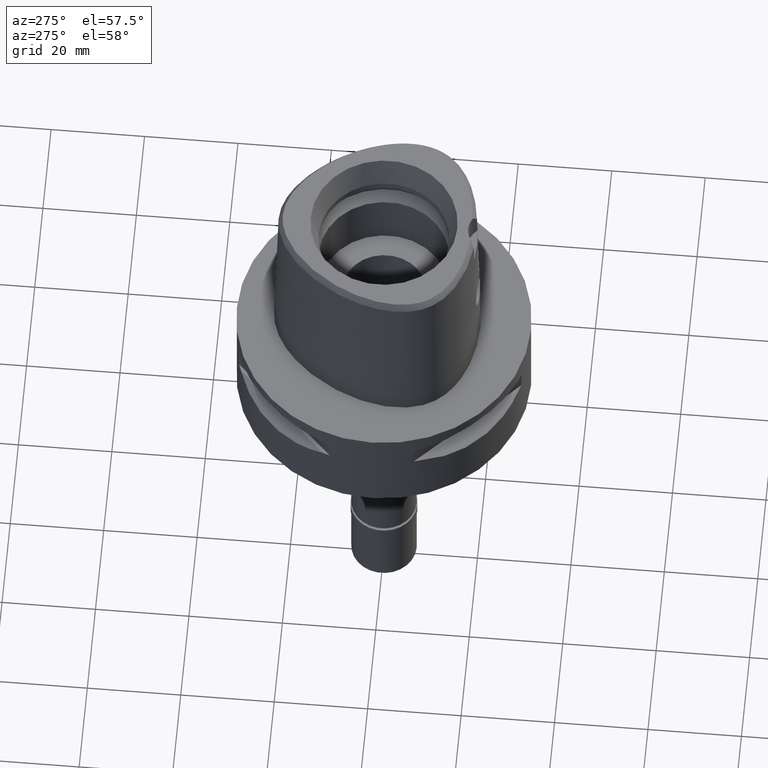
[diagram: clean part render]
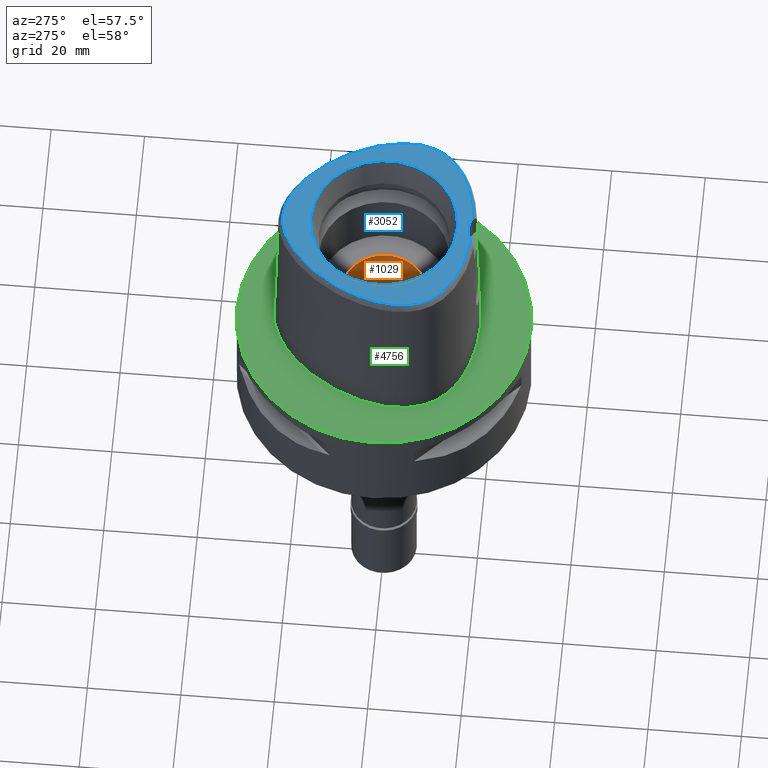
[diagram: same view with three faces highlighted in distinct colors, each labeled with its STEP entity id]
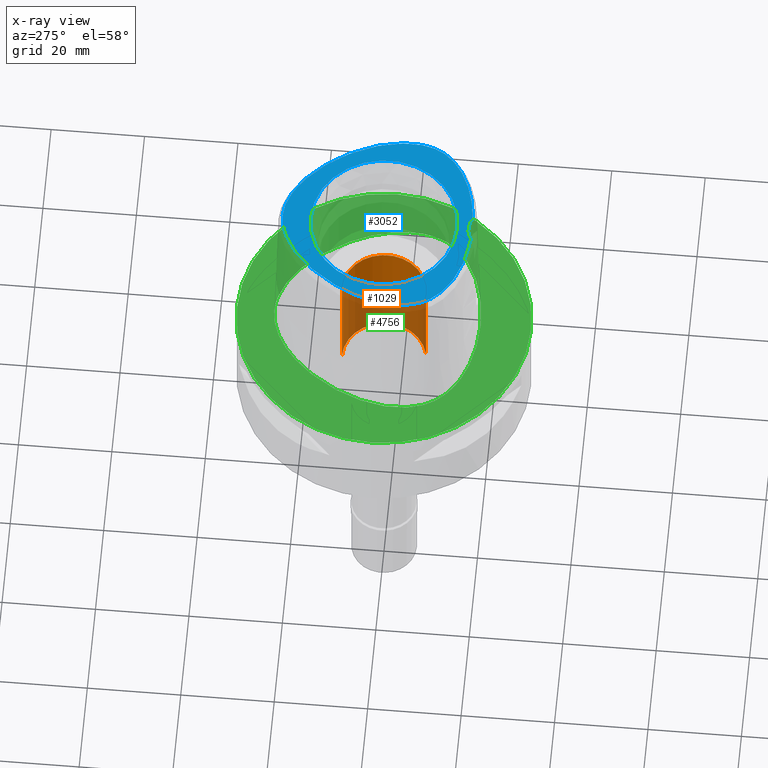
[diagram: x-ray of the same camera — body ghosted, the three highlighted faces saturated]
A machine part, auxiliary view with three faces highlighted in distinct colors.
The next image is the same camera in x-ray (body ghosted, the three faces saturated) — at least one of them is partly hidden behind the body in this view.
Their STEP definitions:

[orange] entity #1029 — the highlighted cylindrical surface (partial cylindrical patch) has radius 9 mm, axis along (0, 0, -1).
#103 = ORIENTED_EDGE ( 'NONE', *, *, #3881, .F. ) ;
#343 = CARTESIAN_POINT ( 'NONE',  ( 0.0000000000000000000, 1.277306611510999858E-14, 4.299999999999999822 ) ) ;
#567 = VERTEX_POINT ( 'NONE', #1850 ) ;
#774 = CYLINDRICAL_SURFACE ( 'NONE', #807, 9.000000000000000000 ) ;
#807 = AXIS2_PLACEMENT_3D ( 'NONE', #343, #4152, #2300 ) ;
#934 = CARTESIAN_POINT ( 'NONE',  ( 0.0000000000000000000, 9.000000000000000000, -16.00000000000000000 ) ) ;
#1002 = DIRECTION ( 'NONE',  ( 0.0000000000000000000, 0.0000000000000000000, -1.000000000000000000 ) ) ;
#1029 = ADVANCED_FACE ( 'NONE', ( #4174 ), #774, .F. ) ;
#1044 = CIRCLE ( 'NONE', #1359, 9.000000000000000000 ) ;
#1184 = ORIENTED_EDGE ( 'NONE', *, *, #1489, .F. ) ;
#1215 = CARTESIAN_POINT ( 'NONE',  ( 0.0000000000000000000, -9.000000000000000000, -16.00000000000000000 ) ) ;
#1245 = LINE ( 'NONE', #1621, #2344 ) ;
#1263 = CARTESIAN_POINT ( 'NONE',  ( 0.0000000000000000000, 1.277306611510999858E-14, 11.00000000000000000 ) ) ;
#1359 = AXIS2_PLACEMENT_3D ( 'NONE', #4614, #3174, #2359 ) ;
#1489 = EDGE_CURVE ( 'NONE', #3597, #2198, #1776, .T. ) ;
#1621 = CARTESIAN_POINT ( 'NONE',  ( 0.0000000000000000000, 9.000000000000000000, -16.00000000000000000 ) ) ;
#1776 = LINE ( 'NONE', #2836, #2768 ) ;
#1850 = CARTESIAN_POINT ( 'NONE',  ( 0.0000000000000000000, 9.000000000000000000, 11.00000000000000000 ) ) ;
#2129 = ORIENTED_EDGE ( 'NONE', *, *, #2266, .T. ) ;
#2198 = VERTEX_POINT ( 'NONE', #1215 ) ;
#2266 = EDGE_CURVE ( 'NONE', #3597, #567, #2849, .T. ) ;
#2292 = VERTEX_POINT ( 'NONE', #934 ) ;
#2300 = DIRECTION ( 'NONE',  ( 0.0000000000000000000, -1.000000000000000000, 0.0000000000000000000 ) ) ;
#2344 = VECTOR ( 'NONE', #3880, 1000.000000000000000 ) ;
#2359 = DIRECTION ( 'NONE',  ( 0.0000000000000000000, 1.000000000000000000, 0.0000000000000000000 ) ) ;
#2684 = ORIENTED_EDGE ( 'NONE', *, *, #3496, .T. ) ;
#2768 = VECTOR ( 'NONE', #1002, 1000.000000000000000 ) ;
#2798 = CARTESIAN_POINT ( 'NONE',  ( 0.0000000000000000000, -9.000000000000000000, 11.00000000000000000 ) ) ;
#2836 = CARTESIAN_POINT ( 'NONE',  ( 0.0000000000000000000, -9.000000000000000000, 11.00000000000000000 ) ) ;
#2849 = CIRCLE ( 'NONE', #3498, 9.000000000000000000 ) ;
#3174 = DIRECTION ( 'NONE',  ( 0.0000000000000000000, 0.0000000000000000000, -1.000000000000000000 ) ) ;
#3496 = EDGE_CURVE ( 'NONE', #2292, #2198, #1044, .T. ) ;
#3498 = AXIS2_PLACEMENT_3D ( 'NONE', #1263, #3552, #3529 ) ;
#3529 = DIRECTION ( 'NONE',  ( 0.0000000000000000000, -1.000000000000000000, 0.0000000000000000000 ) ) ;
#3552 = DIRECTION ( 'NONE',  ( 0.0000000000000000000, 0.0000000000000000000, 1.000000000000000000 ) ) ;
#3597 = VERTEX_POINT ( 'NONE', #2798 ) ;
#3880 = DIRECTION ( 'NONE',  ( 0.0000000000000000000, 0.0000000000000000000, 1.000000000000000000 ) ) ;
#3881 = EDGE_CURVE ( 'NONE', #2292, #567, #1245, .T. ) ;
#4152 = DIRECTION ( 'NONE',  ( 0.0000000000000000000, 0.0000000000000000000, -1.000000000000000000 ) ) ;
#4174 = FACE_OUTER_BOUND ( 'NONE', #4282, .T. ) ;
#4282 = EDGE_LOOP ( 'NONE', ( #2684, #1184, #2129, #103 ) ) ;
#4614 = CARTESIAN_POINT ( 'NONE',  ( 0.0000000000000000000, 1.277306611510999858E-14, -16.00000000000000000 ) ) ;

[blue] entity #3052 — the highlighted planar face has unit normal (0, 0, 1).
#12 = CARTESIAN_POINT ( 'NONE',  ( 7.655962789344027186, 19.09402979099596465, 38.00000000000117240 ) ) ;
#39 = CARTESIAN_POINT ( 'NONE',  ( 19.54993126781858237, -9.226212439885761896, 38.00000000000024869 ) ) ;
#76 = CARTESIAN_POINT ( 'NONE',  ( -19.64434054693644072, 1.520253387636164799, 37.99999999999468514 ) ) ;
#85 = CARTESIAN_POINT ( 'NONE',  ( 0.0000000000000000000, 0.0000000000000000000, 38.00000000000000000 ) ) ;
#100 = CARTESIAN_POINT ( 'NONE',  ( -11.46564124494416603, 15.92741340513468451, 37.99999999999288747 ) ) ;
#125 = CARTESIAN_POINT ( 'NONE',  ( -15.71788912669310534, -14.29843101565933949, 37.99999999999152323 ) ) ;
#133 = DIRECTION ( 'NONE',  ( 0.0000000000000000000, 1.000000000000000000, 0.0000000000000000000 ) ) ;
#148 = CARTESIAN_POINT ( 'NONE',  ( -20.30498420086959754, -2.177378896257928798, 38.00000000000153477 ) ) ;
#175 = CARTESIAN_POINT ( 'NONE',  ( -17.45119705493911155, -12.68365517585899660, 38.00000000000186162 ) ) ;
#265 = EDGE_LOOP ( 'NONE', ( #1453, #4775 ) ) ;
#271 = EDGE_CURVE ( 'NONE', #2469, #2363, #3023, .T. ) ;
#331 = EDGE_CURVE ( 'NONE', #2363, #2469, #961, .T. ) ;
#359 = CARTESIAN_POINT ( 'NONE',  ( 0.0000000000000000000, 0.0000000000000000000, 38.00000000000000000 ) ) ;
#387 = CARTESIAN_POINT ( 'NONE',  ( 20.27923816685945724, -6.179850483268022998, 38.00000000000232347 ) ) ;
#410 = CARTESIAN_POINT ( 'NONE',  ( 19.64387775268202319, 1.522048414458240906, 37.99999999999626965 ) ) ;
#432 = CARTESIAN_POINT ( 'NONE',  ( 11.32341394162961912, -16.80569392800751061, 37.99999999999295142 ) ) ;
#445 = CARTESIAN_POINT ( 'NONE',  ( -14.21001600787643682, -15.34519100086538579, 37.99999999999469935 ) ) ;
#466 = CIRCLE ( 'NONE', #3890, 5.000000000000000888 ) ;
#468 = CARTESIAN_POINT ( 'NONE',  ( -19.26324493739011956, 2.868570891457427496, 38.00000000000031974 ) ) ;
#480 = DIRECTION ( 'NONE',  ( 0.0000000000000000000, -1.000000000000000000, 0.0000000000000000000 ) ) ;
#493 = CARTESIAN_POINT ( 'NONE',  ( -19.78262210840145841, -8.543146992553143804, 37.99999999999985789 ) ) ;
#504 = CARTESIAN_POINT ( 'NONE',  ( 3.529311563348659142, -18.70747079910108468, 37.99999999999658229 ) ) ;
#541 = CARTESIAN_POINT ( 'NONE',  ( -4.254559144978625085, 20.86660163697690962, 37.99999999999225508 ) ) ;
#605 = ORIENTED_EDGE ( 'NONE', *, *, #1615, .F. ) ;
#705 = CARTESIAN_POINT ( 'NONE',  ( 17.91165267838956510, -12.13575389397516702, 37.99999999999877076 ) ) ;
#723 = CARTESIAN_POINT ( 'NONE',  ( 0.0000000000000000000, -23.00000000000000000, 38.00000000000000000 ) ) ;
#724 = PLANE ( 'NONE',  #1440 ) ;
#730 = CARTESIAN_POINT ( 'NONE',  ( 19.26272899268477801, 2.870227893749763393, 37.99999999999918998 ) ) ;
#738 = CARTESIAN_POINT ( 'NONE',  ( -3.470663397174999625E-11, 21.68728795390000030, 38.00000000000000000 ) ) ;
#753 = CARTESIAN_POINT ( 'NONE',  ( 20.40062138794953839, -4.309334958867803600, 37.99999999999641886 ) ) ;
#776 = CARTESIAN_POINT ( 'NONE',  ( 5.059249257021085633, 20.53399274679191322, 37.99999999999050004 ) ) ;
#805 = CARTESIAN_POINT ( 'NONE',  ( 18.79595068776295719, 4.257753965102448745, 37.99999999999909051 ) ) ;
#817 = CARTESIAN_POINT ( 'NONE',  ( -18.24302769442583028, 5.671232572958936125, 37.99999999999315747 ) ) ;
#832 = CARTESIAN_POINT ( 'NONE',  ( 16.93855157778166998, -13.22377441789625330, 37.99999999999274536 ) ) ;
#854 = CARTESIAN_POINT ( 'NONE',  ( 13.33890749495912509, -15.84912955619883768, 37.99999999999346301 ) ) ;
#867 = CARTESIAN_POINT ( 'NONE',  ( -19.98419490692007372, -7.809898894996430307, 37.99999999999962341 ) ) ;
#894 = CARTESIAN_POINT ( 'NONE',  ( -18.99520880204681816, -10.46968343926616996, 37.99999999999982236 ) ) ;
#917 = CARTESIAN_POINT ( 'NONE',  ( -17.91005512243599185, -12.13778127739821322, 37.99999999999904077 ) ) ;
#947 = DIRECTION ( 'NONE',  ( 0.0000000000000000000, 0.0000000000000000000, 1.000000000000000000 ) ) ;
#961 = CIRCLE ( 'NONE', #2560, 15.71487483155999776 ) ;
#1087 = CARTESIAN_POINT ( 'NONE',  ( 19.28677546797037579, -9.867757137506345089, 37.99999999999813838 ) ) ;
#1133 = CARTESIAN_POINT ( 'NONE',  ( 16.88599964843080414, 8.518708218770077778, 37.99999999999590727 ) ) ;
#1156 = CARTESIAN_POINT ( 'NONE',  ( 19.98468477322826686, -7.807876343103914429, 37.99999999999636913 ) ) ;
#1177 = CARTESIAN_POINT ( 'NONE',  ( 19.78323211893306066, -8.541156231035683888, 37.99999999999135980 ) ) ;
#1232 = CARTESIAN_POINT ( 'NONE',  ( 6.196495988003482225, -18.31673538865334194, 37.99999999999906919 ) ) ;
#1239 = CARTESIAN_POINT ( 'NONE',  ( 0.0000000000000000000, 15.71487483155999776, 38.00000000000000000 ) ) ;
#1268 = CARTESIAN_POINT ( 'NONE',  ( -12.37132652997974525, -16.34104299088316381, 37.99999999999624123 ) ) ;
#1292 = CARTESIAN_POINT ( 'NONE',  ( -18.67608643722019934, -11.03561202290957510, 37.99999999999504752 ) ) ;
#1302 = CARTESIAN_POINT ( 'NONE',  ( 14.21382211799543249, -15.34284287400556579, 37.99999999999774047 ) ) ;
#1315 = CARTESIAN_POINT ( 'NONE',  ( -2.682279906006999948, -18.78035848609999903, 38.00000000000000000 ) ) ;
#1379 = VERTEX_POINT ( 'NONE', #1725 ) ;
#1418 = CARTESIAN_POINT ( 'NONE',  ( -1.323674540694302015, 21.61098849315643022, 37.99999999999819522 ) ) ;
#1440 = AXIS2_PLACEMENT_3D ( 'NONE', #359, #4169, #3437 ) ;
#1453 = ORIENTED_EDGE ( 'NONE', *, *, #331, .F. ) ;
#1462 = CARTESIAN_POINT ( 'NONE',  ( 5.894487344450181077, 20.13186406532426531, 37.99999999999511147 ) ) ;
#1480 = FACE_OUTER_BOUND ( 'NONE', #3783, .T. ) ;
#1486 = CARTESIAN_POINT ( 'NONE',  ( 6.760281394351210338, 19.65404668909837227, 37.99999999999469225 ) ) ;
#1509 = CARTESIAN_POINT ( 'NONE',  ( 4.255661039972727266, 20.86618068829700690, 37.99999999999252509 ) ) ;
#1510 = B_SPLINE_CURVE_WITH_KNOTS ( 'NONE', 3,
 ( #1315, #3150, #1596, #2067, #2410, #3858, #4216, #2035, #2755, #1268, #1966, #445, #2733, #125, #3510, #1990, #175, #917, #3123, #1292, #894, #3927, #2361, #493, #867, #3559, #4711, #3204, #4265, #2386, #148, #2777, #4289, #76, #468, #2013, #817, #3904, #1643, #3581, #2800, #1667, #3534, #4664, #100, #3099, #4617, #4685, #4310, #2336, #2435, #3950, #541, #1691, #3483, #4242, #1418, #1739, #2139, #4738 ),
 .UNSPECIFIED., .F., .F.,
 ( 4, 1, 1, 1, 1, 1, 1, 1, 1, 1, 1, 1, 1, 1, 1, 1, 1, 1, 1, 1, 1, 1, 1, 1, 1, 1, 1, 1, 1, 1, 1, 1, 1, 1, 1, 1, 1, 1, 1, 1, 1, 1, 1, 1, 1, 1, 1, 1, 1, 1, 1, 1, 1, 1, 1, 1, 1, 4 ),
 ( 0.0000000000000000000, 0.005420919554200098744, 0.02318126027639999531, 0.04094160099879995407, 0.05870194172099996166, 0.07646228244330000035, 0.09422262316550000794, 0.1119829638877999356, 0.1297433046099999432, 0.1475036453321999508, 0.1652639860544999895, 0.1830243267768000281, 0.2007846674991000668, 0.2185450082212999634, 0.2363053489436000021, 0.2540656896658000097, 0.2718260303881000484, 0.2895863711103000560, 0.3073467118325999836, 0.3251070525547999912, 0.3428673932771000299, 0.3606277339994000686, 0.3783880747216000762, 0.3961484154438998928, 0.4139087561661000114, 0.4316690968884000501, 0.4494294376106000577, 0.4671897783328999854, 0.4849501190552000240, 0.5027104597774000316, 0.5204708004996999593, 0.5382311412219000779, 0.5559914819442000056, 0.5737518226664000132, 0.5915121633886999408, 0.6092725041108999484, 0.6270328448331999871, 0.6447931855555000258, 0.6625535262777000334, 0.6803138669999999610, 0.6980742077221999686, 0.7158345484445000073, 0.7335948891667000149, 0.7513552298890000536, 0.7691155706112000612, 0.7868759113336000199, 0.8046362520558000275, 0.8223965927780999552, 0.8401569335002999628, 0.8579172742224999704, 0.8756776149448000091, 0.8934379556670000166, 0.9111982963893099363, 0.9289586371115700070, 0.9467189778338299666, 0.9644793185560800453, 0.9822396592783400049, 1.000000000000000000 ),
 .UNSPECIFIED. ) ;
#1535 = CARTESIAN_POINT ( 'NONE',  ( 17.60373714028570191, 7.099883643192829830, 37.99999999999627676 ) ) ;
#1560 = CARTESIAN_POINT ( 'NONE',  ( 18.67722910598558528, -11.03372143227992908, 37.99999999999570832 ) ) ;
#1596 = CARTESIAN_POINT ( 'NONE',  ( -3.522896839654386714, -18.70811514173783507, 37.99999999999571543 ) ) ;
#1615 = EDGE_CURVE ( 'NONE', #1917, #1379, #466, .T. ) ;
#1618 = B_SPLINE_CURVE_WITH_KNOTS ( 'NONE', 3,
 ( #4550, #3792, #1902, #2602, #2992, #4526, #2325, #1509, #776, #1462, #1486, #12, #4900, #4500, #2302, #2670, #2696, #3015, #4478, #4133, #3420, #1133, #1535, #3816, #805, #730, #410, #2254, #4153, #3745, #3768, #753, #2277, #387, #3037, #1156, #1177, #39, #1087, #1837, #1560, #4110, #705, #2231, #832, #3915, #2446, #4698, #1302, #854, #1632, #432, #2003, #4300, #2024, #1232, #2399, #504, #3547, #2811 ),
 .UNSPECIFIED., .F., .F.,
 ( 4, 1, 1, 1, 1, 1, 1, 1, 1, 1, 1, 1, 1, 1, 1, 1, 1, 1, 1, 1, 1, 1, 1, 1, 1, 1, 1, 1, 1, 1, 1, 1, 1, 1, 1, 1, 1, 1, 1, 1, 1, 1, 1, 1, 1, 1, 1, 1, 1, 1, 1, 1, 1, 1, 1, 1, 1, 4 ),
 ( 0.0000000000000000000, 0.01775854187129999318, 0.03551708374169992855, 0.05327562561200005486, 0.07103416748239999023, 0.08879270935270000553, 0.1065512512231000519, 0.1243097930933999562, 0.1420683349638000026, 0.1598268768341000179, 0.1775854187044000332, 0.1953439605747999686, 0.2131025024450999839, 0.2308610443155000302, 0.2486195861857999345, 0.2663781280563000120, 0.2841366699266000273, 0.3018952117970000737, 0.3196537536672999780, 0.3374122955377000244, 0.3551708374080000397, 0.3729293792782999439, 0.3906879211486999903, 0.4084464630190000056, 0.4262050048894000520, 0.4439635467596999563, 0.4617220886301000027, 0.4794806305004000180, 0.4972391723707999533, 0.5149977142410999686, 0.5327562561113999839, 0.5505147979818000303, 0.5682733398521000456, 0.5860318817224999810, 0.6037904235927999963, 0.6215489654632000427, 0.6393075073334999470, 0.6570660492038999934, 0.6748245910742000087, 0.6925831329445000240, 0.7103416748149000703, 0.7281002166851999746, 0.7458587585556000210, 0.7636173004259000363, 0.7813758422962999717, 0.7991343841665999870, 0.8168929260370000334, 0.8346514679073000487, 0.8524100097776999840, 0.8701685516479999993, 0.8879270935183000146, 0.9056856353886799660, 0.9234441772589799813, 0.9412027191293600437, 0.9589612609997000270, 0.9767198028700500023, 0.9944783447403919840, 1.000000000000000000 ),
 .UNSPECIFIED. ) ;
#1632 = CARTESIAN_POINT ( 'NONE',  ( 12.37622418509702626, -16.33871033285740992, 37.99999999999209876 ) ) ;
#1643 = CARTESIAN_POINT ( 'NONE',  ( -16.88647904405539890, 8.517821442303842971, 37.99999999999828759 ) ) ;
#1667 = CARTESIAN_POINT ( 'NONE',  ( -14.34402387965722347, 12.54761970513117220, 37.99999999999926814 ) ) ;
#1691 = CARTESIAN_POINT ( 'NONE',  ( -3.481017203589414244, 21.13509756881976642, 37.99999999998989608 ) ) ;
#1725 = CARTESIAN_POINT ( 'NONE',  ( -2.682279906006999948, -18.78035848609999903, 38.00000000000000000 ) ) ;
#1739 = CARTESIAN_POINT ( 'NONE',  ( -0.6498990081536148988, 21.67378274708397967, 37.99999999999037215 ) ) ;
#1837 = CARTESIAN_POINT ( 'NONE',  ( 18.99619228226276846, -10.46780014453555019, 37.99999999999299405 ) ) ;
#1902 = CARTESIAN_POINT ( 'NONE',  ( 0.6513209347955553064, 21.67370899611235657, 37.99999999999604228 ) ) ;
#1917 = VERTEX_POINT ( 'NONE', #3907 ) ;
#1966 = CARTESIAN_POINT ( 'NONE',  ( -13.33457781970217582, -15.85148397417890642, 37.99999999999765521 ) ) ;
#1990 = CARTESIAN_POINT ( 'NONE',  ( -16.93638123745682478, -13.22593246128733568, 37.99999999999467803 ) ) ;
#2003 = CARTESIAN_POINT ( 'NONE',  ( 10.17751632998041345, -17.24426134458967752, 37.99999999999835154 ) ) ;
#2013 = CARTESIAN_POINT ( 'NONE',  ( -18.79649882725113486, 4.256255933891768706, 37.99999999999492672 ) ) ;
#2024 = CARTESIAN_POINT ( 'NONE',  ( 7.606839420237791138, -18.00827588386101041, 37.99999999999970157 ) ) ;
#2035 = CARTESIAN_POINT ( 'NONE',  ( -10.17136073855287393, -17.24644253470300370, 37.99999999999700151 ) ) ;
#2067 = CARTESIAN_POINT ( 'NONE',  ( -4.706994425064666032, -18.56721852573081222, 38.00000000000186162 ) ) ;
#2123 = CARTESIAN_POINT ( 'NONE',  ( 0.0000000000000000000, 0.0000000000000000000, 38.00000000000000000 ) ) ;
#2139 = CARTESIAN_POINT ( 'NONE',  ( -0.2181979014508845793, 21.68728795389269592, 37.99999999999072742 ) ) ;
#2231 = CARTESIAN_POINT ( 'NONE',  ( 17.45306278053165272, -12.68156296993408461, 38.00000000000130740 ) ) ;
#2254 = CARTESIAN_POINT ( 'NONE',  ( 19.94150023627906165, 0.2261566111946391178, 37.99999999999943157 ) ) ;
#2277 = CARTESIAN_POINT ( 'NONE',  ( 20.36412151360978484, -5.276385427453837096, 38.00000000000012790 ) ) ;
#2302 = CARTESIAN_POINT ( 'NONE',  ( 10.48999540691425914, 16.86597469870252297, 37.99999999999648281 ) ) ;
#2325 = CARTESIAN_POINT ( 'NONE',  ( 3.482188079159944660, 21.13472718027583142, 37.99999999999262457 ) ) ;
#2336 = CARTESIAN_POINT ( 'NONE',  ( -6.759433772717978961, 19.65454812513169713, 37.99999999998910027 ) ) ;
#2361 = CARTESIAN_POINT ( 'NONE',  ( -19.54919922642120156, -9.228169790569110020, 38.00000000000201794 ) ) ;
#2363 = VERTEX_POINT ( 'NONE', #1239 ) ;
#2386 = CARTESIAN_POINT ( 'NONE',  ( -20.38301517462857859, -3.278344853327475938, 37.99999999999635492 ) ) ;
#2399 = CARTESIAN_POINT ( 'NONE',  ( 4.715576077241800057, -18.56597918135391012, 37.99999999998885869 ) ) ;
#2410 = CARTESIAN_POINT ( 'NONE',  ( -6.188376196367142867, -18.31830638231387454, 37.99999999999331379 ) ) ;
#2435 = CARTESIAN_POINT ( 'NONE',  ( -5.893543501601998358, 20.13235399352335264, 37.99999999999989342 ) ) ;
#2446 = CARTESIAN_POINT ( 'NONE',  ( 15.72078707640507389, -14.29615620309170332, 37.99999999999743494 ) ) ;
#2469 = VERTEX_POINT ( 'NONE', #4175 ) ;
#2560 = AXIS2_PLACEMENT_3D ( 'NONE', #2123, #947, #133 ) ;
#2570 = DIRECTION ( 'NONE',  ( 0.0000000000000000000, 0.0000000000000000000, 1.000000000000000000 ) ) ;
#2582 = EDGE_CURVE ( 'NONE', #3340, #1917, #1618, .T. ) ;
#2602 = CARTESIAN_POINT ( 'NONE',  ( 1.325020189552978067, 21.61081414408828749, 38.00000000000042633 ) ) ;
#2670 = CARTESIAN_POINT ( 'NONE',  ( 11.46587147800286210, 15.92717600803003286, 37.99999999999710809 ) ) ;
#2696 = CARTESIAN_POINT ( 'NONE',  ( 12.44125753246503940, 14.89118158853944429, 37.99999999999700151 ) ) ;
#2733 = CARTESIAN_POINT ( 'NONE',  ( -15.00295592773658626, -14.82617991125779611, 37.99999999999606359 ) ) ;
#2755 = CARTESIAN_POINT ( 'NONE',  ( -11.31790883121226798, -16.80796958614038772, 37.99999999999536726 ) ) ;
#2777 = CARTESIAN_POINT ( 'NONE',  ( -20.16012968311570219, -1.009698174524126912, 37.99999999999856470 ) ) ;
#2800 = CARTESIAN_POINT ( 'NONE',  ( -15.24692477332810547, 11.25717358966726422, 37.99999999999951683 ) ) ;
#2811 = CARTESIAN_POINT ( 'NONE',  ( 2.682287482605000051, -18.78036330228999873, 38.00000000000000000 ) ) ;
#2992 = CARTESIAN_POINT ( 'NONE',  ( 2.018320379028669009, 21.50256508436079628, 38.00000000000088107 ) ) ;
#3015 = CARTESIAN_POINT ( 'NONE',  ( 13.40430406168949418, 13.76274261012867406, 38.00000000000237321 ) ) ;
#3023 = CIRCLE ( 'NONE', #3270, 15.71487483155999776 ) ;
#3037 = CARTESIAN_POINT ( 'NONE',  ( 20.15127154947789734, -7.022178451341446248, 38.00000000000135003 ) ) ;
#3052 = ADVANCED_FACE ( 'NONE', ( #1480, #4126 ), #724, .T. ) ;
#3099 = CARTESIAN_POINT ( 'NONE',  ( -10.48962422760007485, 16.86631853279082449, 37.99999999999962341 ) ) ;
#3123 = CARTESIAN_POINT ( 'NONE',  ( -18.31748213707672690, -11.58791794387622076, 37.99999999999644018 ) ) ;
#3150 = CARTESIAN_POINT ( 'NONE',  ( -2.841965291530648585, -18.76757795571776555, 37.99999999999938893 ) ) ;
#3204 = CARTESIAN_POINT ( 'NONE',  ( -20.36398648679537615, -5.278470727085804448, 37.99999999999683808 ) ) ;
#3270 = AXIS2_PLACEMENT_3D ( 'NONE', #85, #3520, #480 ) ;
#3340 = VERTEX_POINT ( 'NONE', #738 ) ;
#3420 = CARTESIAN_POINT ( 'NONE',  ( 16.09765529146447349, 9.909410920132922129, 37.99999999998851763 ) ) ;
#3437 = DIRECTION ( 'NONE',  ( 1.000000000000000000, 0.0000000000000000000, 0.0000000000000000000 ) ) ;
#3483 = CARTESIAN_POINT ( 'NONE',  ( -2.735698246183325910, 21.34559102902507632, 38.00000000000076028 ) ) ;
#3510 = CARTESIAN_POINT ( 'NONE',  ( -16.36032397154023954, -13.76458520345547143, 37.99999999999751310 ) ) ;
#3520 = DIRECTION ( 'NONE',  ( 0.0000000000000000000, 0.0000000000000000000, 1.000000000000000000 ) ) ;
#3534 = CARTESIAN_POINT ( 'NONE',  ( -13.40435640711941367, 13.76268382997163897, 37.99999999999577227 ) ) ;
#3547 = CARTESIAN_POINT ( 'NONE',  ( 2.845098933833399180, -18.76733062685926612, 37.99999999999623412 ) ) ;
#3559 = CARTESIAN_POINT ( 'NONE',  ( -20.15090095364768885, -7.024227649787801120, 37.99999999999792522 ) ) ;
#3581 = CARTESIAN_POINT ( 'NONE',  ( -16.09805956313970654, 9.908742513518054906, 37.99999999999937472 ) ) ;
#3745 = CARTESIAN_POINT ( 'NONE',  ( 20.30478359881580275, -2.175347700950678309, 37.99999999999710809 ) ) ;
#3768 = CARTESIAN_POINT ( 'NONE',  ( 20.38292172607449615, -3.276278498261294470, 37.99999999999621281 ) ) ;
#3783 = EDGE_LOOP ( 'NONE', ( #4702, #4024, #605 ) ) ;
#3792 = CARTESIAN_POINT ( 'NONE',  ( 0.2185816947241123465, 21.68728795389402819, 37.99999999999718625 ) ) ;
#3816 = CARTESIAN_POINT ( 'NONE',  ( 18.24247239569602286, 5.672548708072492119, 37.99999999999553779 ) ) ;
#3858 = CARTESIAN_POINT ( 'NONE',  ( -7.599370508971153626, -18.01010694911619225, 37.99999999999602807 ) ) ;
#3890 = AXIS2_PLACEMENT_3D ( 'NONE', #723, #2570, #4493 ) ;
#3904 = CARTESIAN_POINT ( 'NONE',  ( -17.60426951086894931, 7.098774535282587728, 37.99999999999219824 ) ) ;
#3907 = CARTESIAN_POINT ( 'NONE',  ( 2.682287482605000051, -18.78036330228999873, 38.00000000000000000 ) ) ;
#3915 = CARTESIAN_POINT ( 'NONE',  ( 16.36283630828387103, -13.76236604534778429, 37.99999999999745626 ) ) ;
#3916 = EDGE_CURVE ( 'NONE', #1379, #3340, #1510, .T. ) ;
#3927 = CARTESIAN_POINT ( 'NONE',  ( -19.28591707037117686, -9.869682450887594882, 37.99999999999295852 ) ) ;
#3950 = CARTESIAN_POINT ( 'NONE',  ( -5.058220461390257938, 20.53445508814304077, 37.99999999999409539 ) ) ;
#4024 = ORIENTED_EDGE ( 'NONE', *, *, #3916, .F. ) ;
#4110 = CARTESIAN_POINT ( 'NONE',  ( 18.31883910943629346, -11.58595831187969694, 37.99999999999354827 ) ) ;
#4126 = FACE_BOUND ( 'NONE', #265, .T. ) ;
#4133 = CARTESIAN_POINT ( 'NONE',  ( 15.24661770199511146, 11.25762885478003028, 37.99999999999418776 ) ) ;
#4153 = CARTESIAN_POINT ( 'NONE',  ( 20.15982952131994921, -1.007721426051601421, 38.00000000000198952 ) ) ;
#4169 = DIRECTION ( 'NONE',  ( 0.0000000000000000000, 0.0000000000000000000, 1.000000000000000000 ) ) ;
#4175 = CARTESIAN_POINT ( 'NONE',  ( 0.0000000000000000000, -15.71487483155999776, 38.00000000000000000 ) ) ;
#4216 = CARTESIAN_POINT ( 'NONE',  ( -8.930096025510739111, -17.65000298921757960, 38.00000000000150635 ) ) ;
#4242 = CARTESIAN_POINT ( 'NONE',  ( -2.017025177697091998, 21.50280829367959967, 37.99999999999576517 ) ) ;
#4265 = CARTESIAN_POINT ( 'NONE',  ( -20.40060226222999518, -4.311417605381541840, 38.00000000000011369 ) ) ;
#4289 = CARTESIAN_POINT ( 'NONE',  ( -19.94188961899451940, 0.2242544969880314876, 37.99999999999766942 ) ) ;
#4300 = CARTESIAN_POINT ( 'NONE',  ( 8.936919536467451408, -17.64796721715415728, 37.99999999999392486 ) ) ;
#4310 = CARTESIAN_POINT ( 'NONE',  ( -7.655222869373096373, 19.09452359226218121, 37.99999999999149480 ) ) ;
#4478 = CARTESIAN_POINT ( 'NONE',  ( 14.34383722811658224, 12.54786717290767584, 37.99999999999447198 ) ) ;
#4493 = DIRECTION ( 'NONE',  ( 0.0000000000000000000, 1.000000000000000000, 0.0000000000000000000 ) ) ;
#4500 = CARTESIAN_POINT ( 'NONE',  ( 9.524842839488474766, 17.70516372194451193, 38.00000000000187583 ) ) ;
#4526 = CARTESIAN_POINT ( 'NONE',  ( 2.736932690726577633, 21.34527940056999284, 37.99999999999847944 ) ) ;
#4550 = CARTESIAN_POINT ( 'NONE',  ( -3.470663397174999625E-11, 21.68728795390000030, 38.00000000000000000 ) ) ;
#4617 = CARTESIAN_POINT ( 'NONE',  ( -9.524337278002736440, 17.70558492632073211, 37.99999999999255351 ) ) ;
#4664 = CARTESIAN_POINT ( 'NONE',  ( -12.44116897271325151, 14.89128547409854164, 37.99999999999415934 ) ) ;
#4685 = CARTESIAN_POINT ( 'NONE',  ( -8.578220530114510467, 18.44656747109464234, 37.99999999999693756 ) ) ;
#4698 = CARTESIAN_POINT ( 'NONE',  ( 15.00628712263086406, -14.82385870795017624, 37.99999999999131717 ) ) ;
#4702 = ORIENTED_EDGE ( 'NONE', *, *, #2582, .F. ) ;
#4711 = CARTESIAN_POINT ( 'NONE',  ( -20.27898581532684119, -6.181921586190123996, 37.99999999999310774 ) ) ;
#4738 = CARTESIAN_POINT ( 'NONE',  ( -3.470663397174999625E-11, 21.68728795390000030, 38.00000000000000000 ) ) ;
#4775 = ORIENTED_EDGE ( 'NONE', *, *, #271, .F. ) ;
#4900 = CARTESIAN_POINT ( 'NONE',  ( 8.578848111817190869, 18.44609846599220759, 37.99999999999640465 ) ) ;

[green] entity #4756 — the highlighted planar face has unit normal (0, 0, -1).
#88 = VERTEX_POINT ( 'NONE', #1206 ) ;
#183 = DIRECTION ( 'NONE',  ( 0.0000000000000000000, -1.000000000000000000, 0.0000000000000000000 ) ) ;
#198 = AXIS2_PLACEMENT_3D ( 'NONE', #2087, #2898, #1687 ) ;
#358 = CARTESIAN_POINT ( 'NONE',  ( 18.56841065823849846, -14.16937988926337866, -3.744498006477171848E-07 ) ) ;
#376 = CARTESIAN_POINT ( 'NONE',  ( -0.8548392416278450812, 23.47499999052037012, 3.792416903788692504E-07 ) ) ;
#398 = CARTESIAN_POINT ( 'NONE',  ( 5.792621527824999993E-11, 23.47499999999000053, 1.460313351723999876E-13 ) ) ;
#421 = CARTESIAN_POINT ( 'NONE',  ( -22.05732873379196946, -6.847636717395182870, 3.792416903788693033E-07 ) ) ;
#517 = CARTESIAN_POINT ( 'NONE',  ( -2.113823672501519368, -20.67499999052410686, 3.792416903788693033E-07 ) ) ;
#521 = EDGE_CURVE ( 'NONE', #4712, #88, #1049, .T. ) ;
#551 = CARTESIAN_POINT ( 'NONE',  ( -1.135067388878000057E-11, -20.67499999999999716, 1.488439001680999778E-13 ) ) ;
#599 = EDGE_LOOP ( 'NONE', ( #4392, #4688 ) ) ;
#609 = B_SPLINE_CURVE_WITH_KNOTS ( 'NONE', 3,
 ( #398, #376, #3407, #1496, #3758, #2983, #3050, #3027, #2218, #4537, #1143, #421, #1941, #3732, #1870, #1849, #3386, #3002, #1220, #4639, #844, #517, #3176 ),
 .UNSPECIFIED., .F., .F.,
 ( 4, 1, 1, 1, 1, 1, 1, 1, 1, 1, 1, 1, 1, 1, 1, 1, 1, 1, 1, 1, 4 ),
 ( 0.0000000000000000000, 0.04166666666755999837, 0.08333333333417000666, 0.1250000000007999990, 0.1666666666674000152, 0.2500000000006000200, 0.3333333333337999971, 0.4166666666671000052, 0.5000000000004000134, 0.5416666666670000296, 0.5833333333336000459, 0.6250000000001999512, 0.6458333333335000148, 0.6666666666668999985, 0.6875000000001000311, 0.7083333333333999837, 0.7500000000001000311, 0.7916666666667000474, 0.8333333333333000637, 0.9166666666666000163, 1.000000000000000000 ),
 .UNSPECIFIED. ) ;
#744 = CARTESIAN_POINT ( 'NONE',  ( 7.571159439093291255, 21.31457032060213308, -3.744498006477171848E-07 ) ) ;
#766 = CARTESIAN_POINT ( 'NONE',  ( 21.55524826910500735, -8.996025393301707140, -3.744498006477171848E-07 ) ) ;
#830 = DIRECTION ( 'NONE',  ( 0.0000000000000000000, 1.000000000000000000, 0.0000000000000000000 ) ) ;
#844 = CARTESIAN_POINT ( 'NONE',  ( -6.341471017527432252, -20.29812499061782560, 3.792416903788693033E-07 ) ) ;
#853 = DIRECTION ( 'NONE',  ( 0.0000000000000000000, 0.0000000000000000000, -1.000000000000000000 ) ) ;
#908 = ORIENTED_EDGE ( 'NONE', *, *, #521, .F. ) ;
#913 = PLANE ( 'NONE',  #198 ) ;
#1049 = CIRCLE ( 'NONE', #4528, 31.50000000000000000 ) ;
#1057 = CARTESIAN_POINT ( 'NONE',  ( 19.64947366622138958, -12.82525391176496399, -3.744498006477171848E-07 ) ) ;
#1123 = VERTEX_POINT ( 'NONE', #2324 ) ;
#1124 = CARTESIAN_POINT ( 'NONE',  ( 5.098437020777644157, 22.52602539935085346, -3.744498006477171848E-07 ) ) ;
#1143 = CARTESIAN_POINT ( 'NONE',  ( -22.24453906904204814, -4.100468750055721756, 3.792416903788693033E-07 ) ) ;
#1147 = CARTESIAN_POINT ( 'NONE',  ( 2.564517728880365333, 23.29328125921377790, -3.744498006477171848E-07 ) ) ;
#1206 = CARTESIAN_POINT ( 'NONE',  ( 0.0000000000000000000, 31.50000000000000000, 0.0000000000000000000 ) ) ;
#1220 = CARTESIAN_POINT ( 'NONE',  ( -14.67337963949274027, -17.21410155423270183, 3.792416903788693033E-07 ) ) ;
#1289 = FACE_BOUND ( 'NONE', #599, .T. ) ;
#1305 = EDGE_CURVE ( 'NONE', #88, #4712, #2928, .T. ) ;
#1333 = CARTESIAN_POINT ( 'NONE',  ( 0.0000000000000000000, -31.50000000000000000, 0.0000000000000000000 ) ) ;
#1427 = CARTESIAN_POINT ( 'NONE',  ( 2.113823673622854837, -20.67500000935358528, -3.744498006477171848E-07 ) ) ;
#1454 = CARTESIAN_POINT ( 'NONE',  ( 20.34961799369339275, -11.74885742656088361, -3.744498006477171848E-07 ) ) ;
#1479 = CARTESIAN_POINT ( 'NONE',  ( 5.792621527824999993E-11, 23.47499999999000053, 1.460313351723999876E-13 ) ) ;
#1496 = CARTESIAN_POINT ( 'NONE',  ( -5.098437013744451463, 22.52602538178630809, 3.792416903788693033E-07 ) ) ;
#1582 = EDGE_CURVE ( 'NONE', #1809, #1123, #3859, .T. ) ;
#1687 = DIRECTION ( 'NONE',  ( 0.0000000000000000000, -1.000000000000000000, 0.0000000000000000000 ) ) ;
#1809 = VERTEX_POINT ( 'NONE', #4269 ) ;
#1849 = CARTESIAN_POINT ( 'NONE',  ( -19.64947365095674670, -12.82525390065949367, 3.792416903788693033E-07 ) ) ;
#1870 = CARTESIAN_POINT ( 'NONE',  ( -20.34961797734478139, -11.74885741712449772, 3.792416903788693033E-07 ) ) ;
#1873 = CARTESIAN_POINT ( 'NONE',  ( 6.341471020874680953, -20.29812500927057783, -3.744498006477171848E-07 ) ) ;
#1941 = CARTESIAN_POINT ( 'NONE',  ( -21.55524825097652553, -8.996025387914773574, 3.792416903788693033E-07 ) ) ;
#2087 = CARTESIAN_POINT ( 'NONE',  ( 0.0000000000000000000, 1.224646799146999965E-14, 0.0000000000000000000 ) ) ;
#2218 = CARTESIAN_POINT ( 'NONE',  ( -20.74942739982489570, 4.657187496767781099, 3.792416903788693033E-07 ) ) ;
#2247 = CARTESIAN_POINT ( 'NONE',  ( 16.95889173175048370, -15.67838867926641910, -3.744498006477171848E-07 ) ) ;
#2324 = CARTESIAN_POINT ( 'NONE',  ( 5.792621527824999993E-11, 23.47499999999000053, 1.460313351723999876E-13 ) ) ;
#2380 = AXIS2_PLACEMENT_3D ( 'NONE', #2743, #853, #830 ) ;
#2403 = ORIENTED_EDGE ( 'NONE', *, *, #1305, .F. ) ;
#2487 = EDGE_LOOP ( 'NONE', ( #2403, #908 ) ) ;
#2493 = CARTESIAN_POINT ( 'NONE',  ( 0.0000000000000000000, 1.277306611510999858E-14, 0.0000000000000000000 ) ) ;
#2640 = CARTESIAN_POINT ( 'NONE',  ( 0.8548392429718546515, 23.47500000936781461, -3.744498006477171848E-07 ) ) ;
#2743 = CARTESIAN_POINT ( 'NONE',  ( 0.0000000000000000000, 1.277306611510999858E-14, 0.0000000000000000000 ) ) ;
#2898 = DIRECTION ( 'NONE',  ( 0.0000000000000000000, 0.0000000000000000000, -1.000000000000000000 ) ) ;
#2928 = CIRCLE ( 'NONE', #2380, 31.50000000000000000 ) ;
#2983 = CARTESIAN_POINT ( 'NONE',  ( -10.74572890445916507, 19.17433593020312088, 3.792416903788693033E-07 ) ) ;
#2986 = CARTESIAN_POINT ( 'NONE',  ( 20.93173253068617967, -10.60431641006565862, -3.744498006477171848E-07 ) ) ;
#3002 = CARTESIAN_POINT ( 'NONE',  ( -16.95889172004650547, -15.67838866438995815, 3.792416903788693033E-07 ) ) ;
#3006 = CARTESIAN_POINT ( 'NONE',  ( 14.67337964884357682, -17.21410157065768587, -3.744498006477171848E-07 ) ) ;
#3027 = CARTESIAN_POINT ( 'NONE',  ( -18.06826687701523682, 10.43171874524289500, 3.792416903788693033E-07 ) ) ;
#3050 = CARTESIAN_POINT ( 'NONE',  ( -14.40795638230038556, 15.64093749384637455, 3.792416903788693033E-07 ) ) ;
#3176 = CARTESIAN_POINT ( 'NONE',  ( -1.135067388878000057E-11, -20.67499999999999716, 1.488439001680999778E-13 ) ) ;
#3313 = CARTESIAN_POINT ( 'NONE',  ( 21.97832648713856685, -0.2810937483622953370, -3.744498006477171848E-07 ) ) ;
#3342 = CARTESIAN_POINT ( 'NONE',  ( 20.74942741765274334, 4.657187503191201117, -3.744498006477171848E-07 ) ) ;
#3386 = CARTESIAN_POINT ( 'NONE',  ( -18.56841064451578660, -14.16937987627511575, 3.792416903788693033E-07 ) ) ;
#3389 = CARTESIAN_POINT ( 'NONE',  ( 18.06826689341627556, 10.43171875470921606, -3.744498006477171848E-07 ) ) ;
#3407 = CARTESIAN_POINT ( 'NONE',  ( -2.564517725007895432, 23.29328124066866224, 3.792416903788693033E-07 ) ) ;
#3732 = CARTESIAN_POINT ( 'NONE',  ( -20.93173251344035179, -10.60431640239690410, 3.792416903788693033E-07 ) ) ;
#3736 = CARTESIAN_POINT ( 'NONE',  ( 14.40795639677333462, 15.64093750607765188, -3.744498006477171848E-07 ) ) ;
#3758 = CARTESIAN_POINT ( 'NONE',  ( -7.571159429548019126, 21.31457030428894583, 3.792416903788693033E-07 ) ) ;
#3859 = B_SPLINE_CURVE_WITH_KNOTS ( 'NONE', 3,
 ( #551, #1427, #1873, #4102, #3006, #2247, #358, #1057, #1454, #2986, #766, #4870, #4146, #3313, #3342, #3389, #3736, #4847, #744, #1124, #1147, #2640, #1479 ),
 .UNSPECIFIED., .F., .F.,
 ( 4, 1, 1, 1, 1, 1, 1, 1, 1, 1, 1, 1, 1, 1, 1, 1, 1, 1, 1, 1, 4 ),
 ( 0.0000000000000000000, 0.08333333333344000726, 0.1666666666668000230, 0.2083333333333000081, 0.2500000000000000000, 0.2916666666666999919, 0.3125000000000000000, 0.3333333333333000081, 0.3541666666666999919, 0.3750000000000000000, 0.4166666666666000163, 0.4583333333332000326, 0.4999999999998999689, 0.5833333333332000326, 0.6666666666664999852, 0.7499999999998000488, 0.8333333333329999704, 0.8749999999997000177, 0.9166666666664000651, 0.9583333333329999704, 1.000000000000000000 ),
 .UNSPECIFIED. ) ;
#3877 = EDGE_CURVE ( 'NONE', #1123, #1809, #609, .T. ) ;
#3946 = FACE_OUTER_BOUND ( 'NONE', #2487, .T. ) ;
#4006 = DIRECTION ( 'NONE',  ( 0.0000000000000000000, 0.0000000000000000000, -1.000000000000000000 ) ) ;
#4102 = CARTESIAN_POINT ( 'NONE',  ( 11.23259757049076768, -18.89324219634239199, -3.744498006477171848E-07 ) ) ;
#4146 = CARTESIAN_POINT ( 'NONE',  ( 22.24453908793780599, -4.100468749944558233, -3.744498006477171848E-07 ) ) ;
#4269 = CARTESIAN_POINT ( 'NONE',  ( -1.135067388878000057E-11, -20.67499999999999716, 1.488439001680999778E-13 ) ) ;
#4392 = ORIENTED_EDGE ( 'NONE', *, *, #3877, .F. ) ;
#4528 = AXIS2_PLACEMENT_3D ( 'NONE', #2493, #4006, #183 ) ;
#4537 = CARTESIAN_POINT ( 'NONE',  ( -21.97832646847974303, -0.2810937516586944351, 3.792416903788693033E-07 ) ) ;
#4639 = CARTESIAN_POINT ( 'NONE',  ( -11.23259756401960630, -18.89324217854631982, 3.792416903788693033E-07 ) ) ;
#4688 = ORIENTED_EDGE ( 'NONE', *, *, #1582, .F. ) ;
#4712 = VERTEX_POINT ( 'NONE', #1333 ) ;
#4756 = ADVANCED_FACE ( 'NONE', ( #3946, #1289 ), #913, .F. ) ;
#4847 = CARTESIAN_POINT ( 'NONE',  ( 10.74572891664685592, 19.17433594470829661, -3.744498006477171848E-07 ) ) ;
#4870 = CARTESIAN_POINT ( 'NONE',  ( 22.05732875252624225, -6.847636720086568651, -3.744498006477171848E-07 ) ) ;